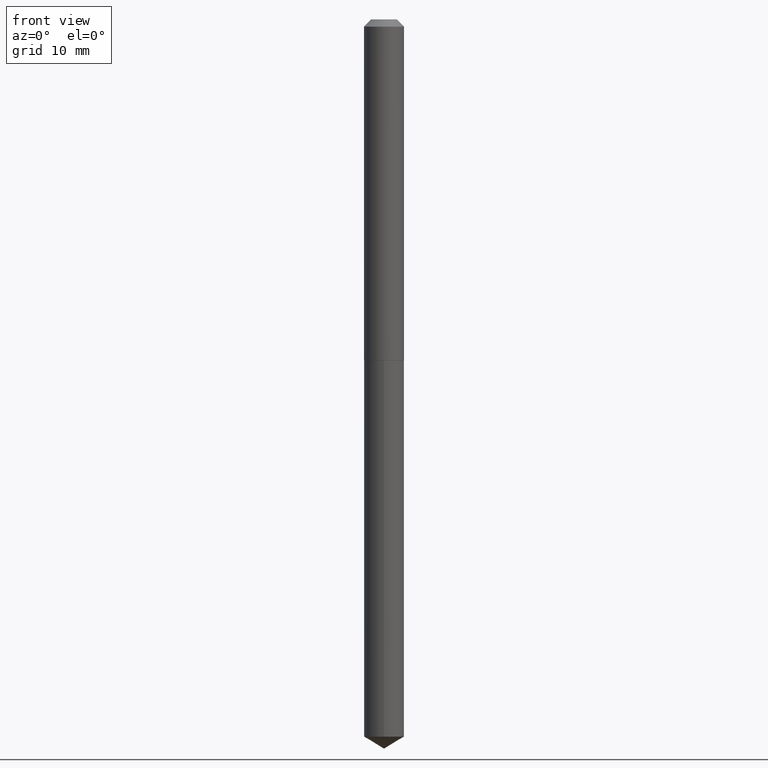
[diagram: clean part render]
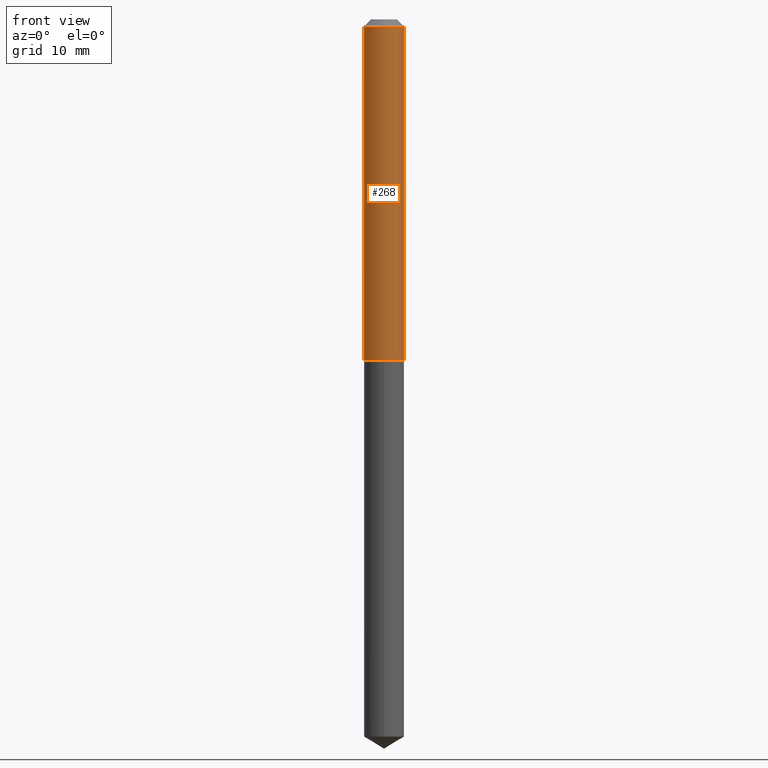
[diagram: same view with one face highlighted and labeled with its STEP entity id]
A machine part, front view. The second image highlights one B-rep face of the part: STEP entity #268.
In plain terms, the highlighted cylindrical surface (edge-blend (fillet) strip) has radius 2.1996 mm, axis along (-0, 0, 1).
Its self-contained STEP definition (entity closure, byte-faithful):
#3 = DIRECTION ( 'NONE',  ( -2.445468806185136597E-29, 3.491481338843145583E-15, 1.000000000000000000 ) ) ;
#5 = CARTESIAN_POINT ( 'NONE',  ( 7.642090019328602662E-31, -1.091087918388490267E-16, -0.03125000000000020817 ) ) ;
#33 = EDGE_CURVE ( 'NONE', #60, #47, #120, .T. ) ;
#38 = DIRECTION ( 'NONE',  ( 1.000000000000000000, -6.982962677686267499E-15, 0.000000000000000000 ) ) ;
#43 = AXIS2_PLACEMENT_3D ( 'NONE', #5, #3, #38 ) ;
#47 = VERTEX_POINT ( 'NONE', #127 ) ;
#50 = LINE ( 'NONE', #353, #134 ) ;
#55 = EDGE_CURVE ( 'NONE', #271, #60, #252, .T. ) ;
#59 = DIRECTION ( 'NONE',  ( -2.445468806185136597E-29, 3.491481338843145583E-15, 1.000000000000000000 ) ) ;
#60 = VERTEX_POINT ( 'NONE', #160 ) ;
#61 = DIRECTION ( 'NONE',  ( 1.000000000000000000, -6.982962677686267499E-15, 4.876176775795935793E-29 ) ) ;
#67 = DIRECTION ( 'NONE',  ( -2.445468806185136597E-29, 3.491481338843145583E-15, 1.000000000000000000 ) ) ;
#76 = EDGE_CURVE ( 'NONE', #271, #152, #321, .T. ) ;
#95 = CARTESIAN_POINT ( 'NONE',  ( -0.08660000000000017684, -4.523781373474978898E-15, -1.471900000000000208 ) ) ;
#96 = CARTESIAN_POINT ( 'NONE',  ( 3.599485535823903241E-29, -5.139111382643227310E-15, -1.471900000000000208 ) ) ;
#108 = FACE_OUTER_BOUND ( 'NONE', #370, .T. ) ;
#120 = CIRCLE ( 'NONE', #43, 0.08660000000000001030 ) ;
#127 = CARTESIAN_POINT ( 'NONE',  ( 0.08660000000000001030, -7.138333597264798278E-16, -0.03125000000000020817 ) ) ;
#134 = VECTOR ( 'NONE', #140, 39.37007874015748143 ) ;
#140 = DIRECTION ( 'NONE',  ( -2.445468806185136877E-29, 3.491481338843145188E-15, 1.000000000000000000 ) ) ;
#152 = VERTEX_POINT ( 'NONE', #206 ) ;
#157 = AXIS2_PLACEMENT_3D ( 'NONE', #341, #59, #61 ) ;
#160 = CARTESIAN_POINT ( 'NONE',  ( -0.08660000000000001030, -2.008780078072789793E-15, -0.03125000000000020817 ) ) ;
#177 = ORIENTED_EDGE ( 'NONE', *, *, #33, .F. ) ;
#191 = EDGE_CURVE ( 'NONE', #152, #47, #50, .T. ) ;
#206 = CARTESIAN_POINT ( 'NONE',  ( 0.08660000000000017684, -5.743835950530859023E-15, -1.471900000000000208 ) ) ;
#221 = DIRECTION ( 'NONE',  ( 1.000000000000000000, -6.982962677686265133E-15, 0.000000000000000000 ) ) ;
#246 = ORIENTED_EDGE ( 'NONE', *, *, #76, .T. ) ;
#252 = LINE ( 'NONE', #374, #279 ) ;
#263 = CYLINDRICAL_SURFACE ( 'NONE', #157, 0.08660000000000009357 ) ;
#268 = ADVANCED_FACE ( 'NONE', ( #108 ), #263, .T. ) ;
#271 = VERTEX_POINT ( 'NONE', #95 ) ;
#279 = VECTOR ( 'NONE', #311, 39.37007874015748143 ) ;
#307 = ORIENTED_EDGE ( 'NONE', *, *, #55, .F. ) ;
#311 = DIRECTION ( 'NONE',  ( -2.445468806185136877E-29, 3.491481338843145188E-15, 1.000000000000000000 ) ) ;
#321 = CIRCLE ( 'NONE', #333, 0.08660000000000017684 ) ;
#333 = AXIS2_PLACEMENT_3D ( 'NONE', #96, #67, #221 ) ;
#341 = CARTESIAN_POINT ( 'NONE',  ( 0.000000000000000000, 0.000000000000000000, 0.000000000000000000 ) ) ;
#353 = CARTESIAN_POINT ( 'NONE',  ( 0.08660000000000009357, -6.047245678876314174E-16, 4.222769087839284757E-30 ) ) ;
#366 = ORIENTED_EDGE ( 'NONE', *, *, #191, .T. ) ;
#370 = EDGE_LOOP ( 'NONE', ( #307, #246, #366, #177 ) ) ;
#374 = CARTESIAN_POINT ( 'NONE',  ( -0.08660000000000009357, 6.153300091682474258E-16, -4.259797788160753011E-30 ) ) ;